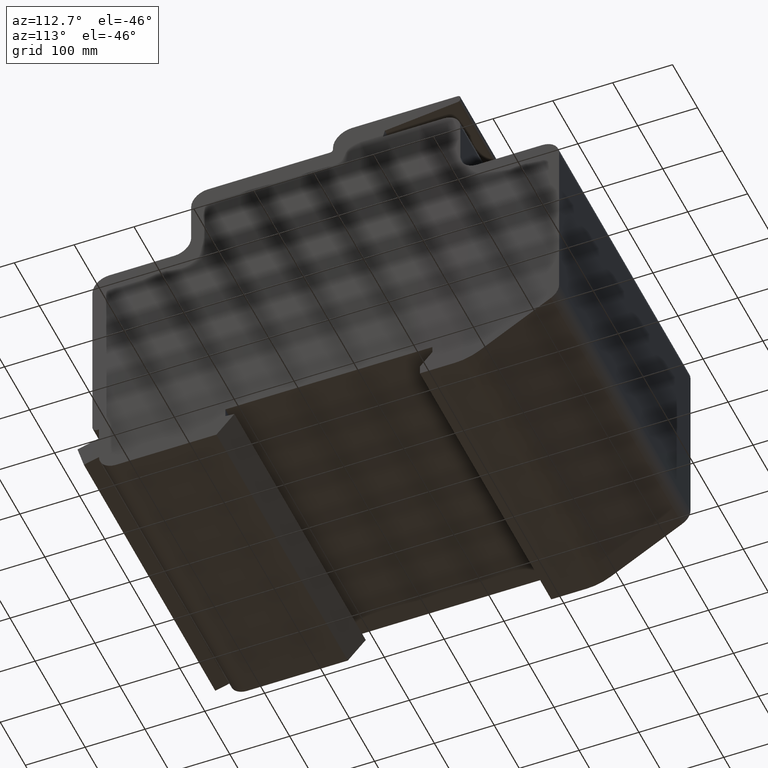
[diagram: clean part render]
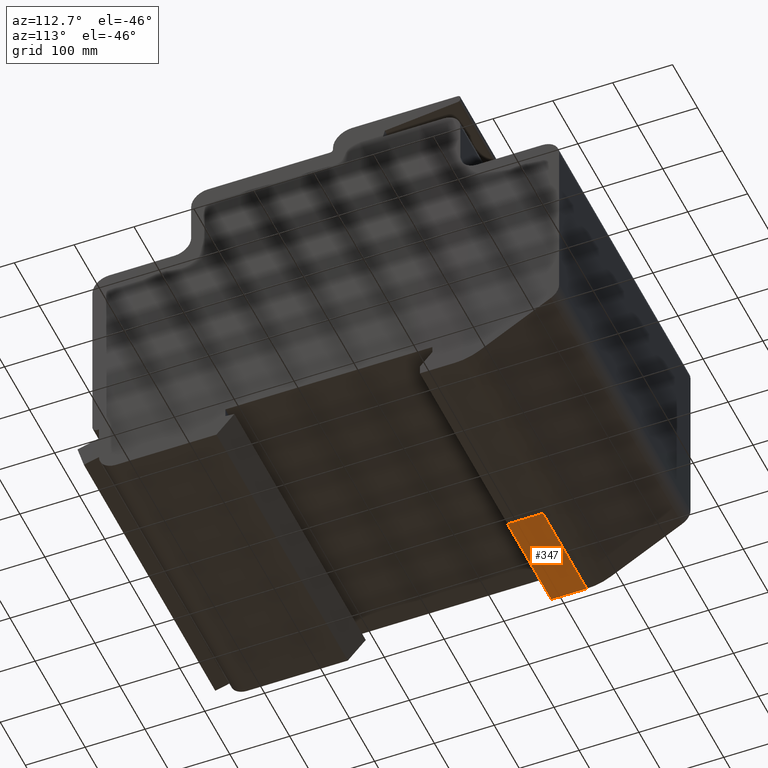
[diagram: same view with one face highlighted and labeled with its STEP entity id]
A machine part, auxiliary view. The second image highlights one B-rep face of the part: STEP entity #347.
In plain terms, the highlighted planar face has unit normal (0, 0, -1).
Its self-contained STEP definition (entity closure, byte-faithful):
#308=CARTESIAN_POINT('',(0.0,38.312738908399808,-50.0));
#309=DIRECTION('',(0.0,0.0,-1.0));
#310=DIRECTION('',(-1.0,0.0,0.0));
#311=AXIS2_PLACEMENT_3D('',#308,#309,#310);
#312=PLANE('',#311);
#313=CARTESIAN_POINT('',(175.00000000000028,38.312738908399808,-50.0));
#314=VERTEX_POINT('',#313);
#315=CARTESIAN_POINT('',(175.00000000000028,-21.000000000000085,-50.0));
#316=VERTEX_POINT('',#315);
#317=CARTESIAN_POINT('',(175.00000000000028,38.312738908399808,-50.0));
#318=DIRECTION('',(0.0,-1.0,0.0));
#319=VECTOR('',#318,59.312738908399893);
#320=LINE('',#317,#319);
#321=EDGE_CURVE('',#314,#316,#320,.T.);
#322=ORIENTED_EDGE('',*,*,#321,.T.);
#323=CARTESIAN_POINT('',(0.0,-21.000000000000085,-50.0));
#324=VERTEX_POINT('',#323);
#325=CARTESIAN_POINT('',(0.0,-21.000000000000085,-50.0));
#326=DIRECTION('',(1.0,0.0,0.0));
#327=VECTOR('',#326,175.00000000000028);
#328=LINE('',#325,#327);
#329=EDGE_CURVE('',#324,#316,#328,.T.);
#330=ORIENTED_EDGE('',*,*,#329,.F.);
#331=CARTESIAN_POINT('',(0.0,38.312738908399808,-50.0));
#332=VERTEX_POINT('',#331);
#333=CARTESIAN_POINT('',(0.0,38.312738908399808,-50.0));
#334=DIRECTION('',(0.0,-1.0,0.0));
#335=VECTOR('',#334,59.312738908399893);
#336=LINE('',#333,#335);
#337=EDGE_CURVE('',#332,#324,#336,.T.);
#338=ORIENTED_EDGE('',*,*,#337,.F.);
#339=CARTESIAN_POINT('',(0.0,38.312738908399808,-50.0));
#340=DIRECTION('',(1.0,0.0,0.0));
#341=VECTOR('',#340,175.00000000000028);
#342=LINE('',#339,#341);
#343=EDGE_CURVE('',#332,#314,#342,.T.);
#344=ORIENTED_EDGE('',*,*,#343,.T.);
#345=EDGE_LOOP('',(#322,#330,#338,#344));
#346=FACE_OUTER_BOUND('',#345,.T.);
#347=ADVANCED_FACE('',(#346),#312,.T.);